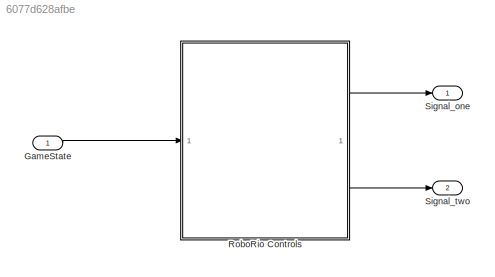
MODEL slx_6077d628afbe
KIND model
CONFIG AbsTol = auto
CONFIG EnableMultiTasking = off
CONFIG FixedStep = t_sample
CONFIG MaxStep = auto
CONFIG MinStep = auto
CONFIG RelTol = 1e-3
CONFIG SampleTimeConstraint = Unconstrained
CONFIG SolverName = FixedStepDiscrete
CONFIG StartTime = 0.0
CONFIG StopTime = inf
BLOCK [Inport] GameState
BLOCK [SubSystem] RoboRio Controls
  ReferencedSubsystem = RoboRio_Controls_sub
BLOCK [Outport] Signal_one
BLOCK [Outport] Signal_two
  Port = 2
LINE GameState:1 -> RoboRio Controls:1
LINE RoboRio Controls:1 -> Signal_one:1
LINE RoboRio Controls:2 -> Signal_two:1
